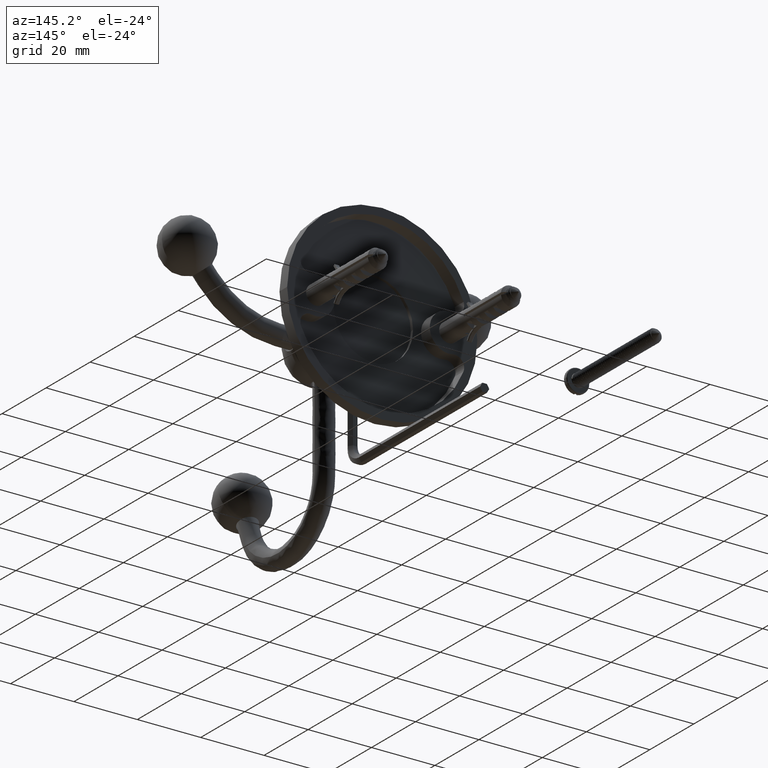
[diagram: clean part render]
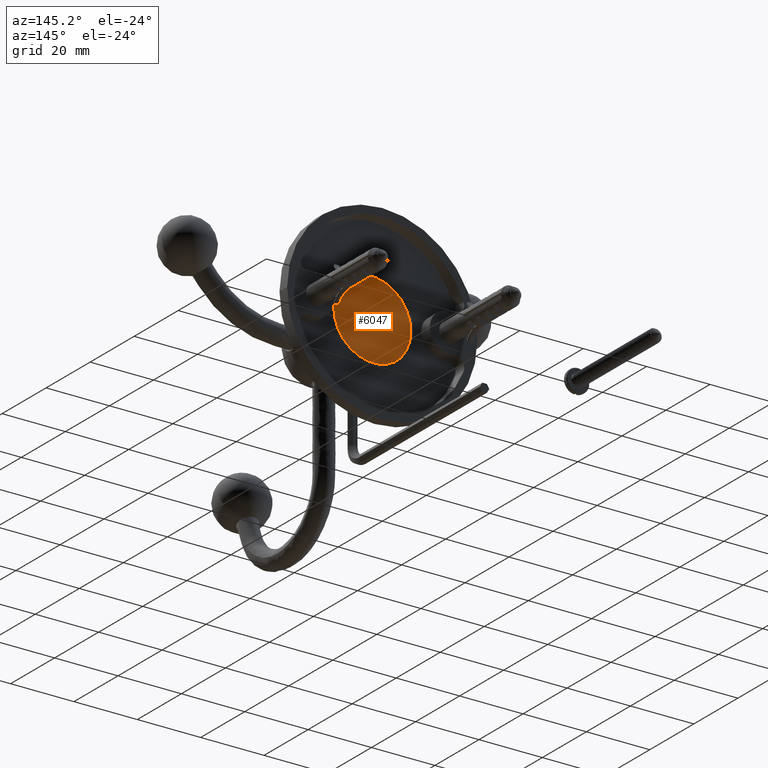
[diagram: same view with one face highlighted and labeled with its STEP entity id]
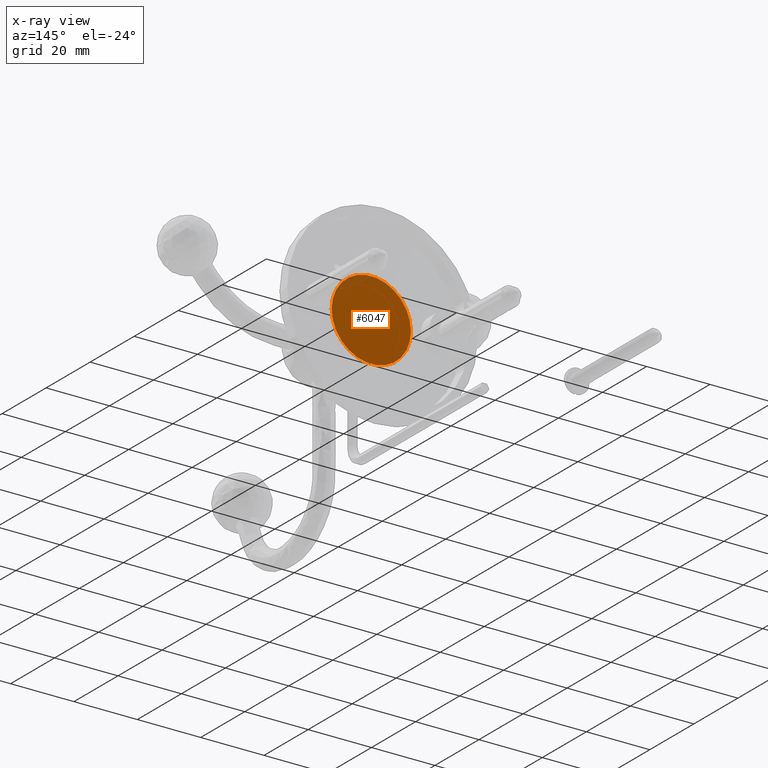
[diagram: x-ray of the same camera — body ghosted, the highlighted face saturated]
A machine part, auxiliary view. The second image highlights one B-rep face of the part: STEP entity #6047.
The next image is the same camera in x-ray: the body ghosted, the highlighted face saturated — about 5% of this face is hidden behind the body in this view.
In plain terms, the highlighted planar face has unit normal (0, 1, 0).
Its self-contained STEP definition (entity closure, byte-faithful):
#5116=CARTESIAN_POINT('',(0.E0,2.E0,0.E0));
#5117=DIRECTION('',(0.E0,1.E0,0.E0));
#5118=DIRECTION('',(1.E0,0.E0,0.E0));
#5119=AXIS2_PLACEMENT_3D('',#5116,#5117,#5118);
#5121=CARTESIAN_POINT('',(0.E0,2.E0,0.E0));
#5122=DIRECTION('',(0.E0,-1.E0,0.E0));
#5123=DIRECTION('',(1.E0,0.E0,0.E0));
#5124=AXIS2_PLACEMENT_3D('',#5121,#5122,#5123);
#5232=CARTESIAN_POINT('',(1.25E1,2.E0,0.E0));
#5233=CARTESIAN_POINT('',(-1.25E1,2.E0,0.E0));
#5234=VERTEX_POINT('',#5232);
#5235=VERTEX_POINT('',#5233);
#6038=CARTESIAN_POINT('',(0.E0,2.E0,0.E0));
#6039=DIRECTION('',(0.E0,-1.E0,0.E0));
#6040=DIRECTION('',(-1.E0,0.E0,0.E0));
#6041=AXIS2_PLACEMENT_3D('',#6038,#6039,#6040);
#6042=PLANE('',#6041);
#6043=ORIENTED_EDGE('',*,*,#6032,.T.);
#6044=ORIENTED_EDGE('',*,*,#6018,.F.);
#6045=EDGE_LOOP('',(#6043,#6044));
#6046=FACE_OUTER_BOUND('',#6045,.F.);
#6047=ADVANCED_FACE('',(#6046),#6042,.T.);
#5120=CIRCLE('',#5119,1.25E1);
#5125=CIRCLE('',#5124,1.25E1);
#6018=EDGE_CURVE('',#5234,#5235,#5125,.T.);
#6032=EDGE_CURVE('',#5234,#5235,#5120,.T.);